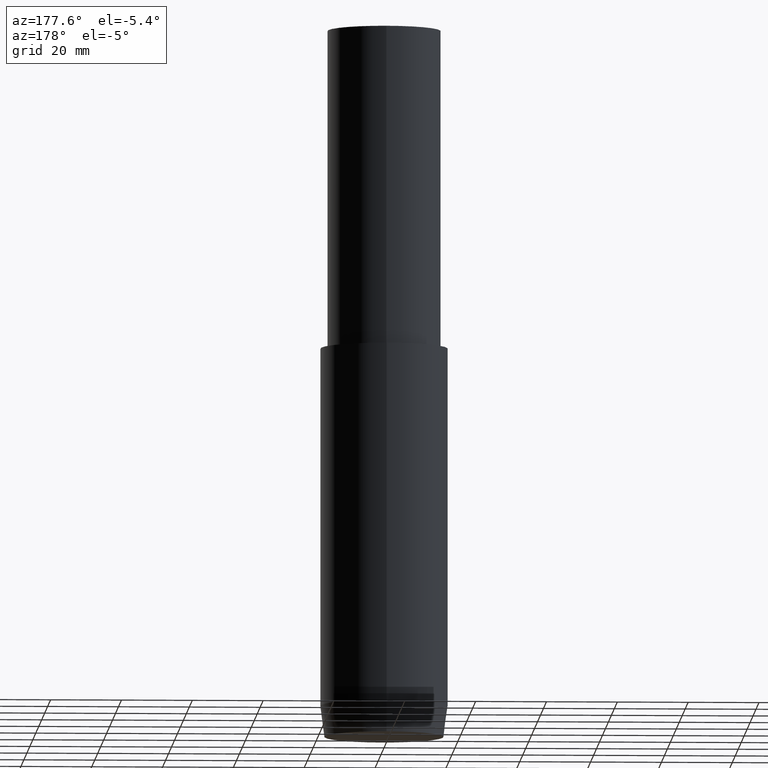
[diagram: clean part render]
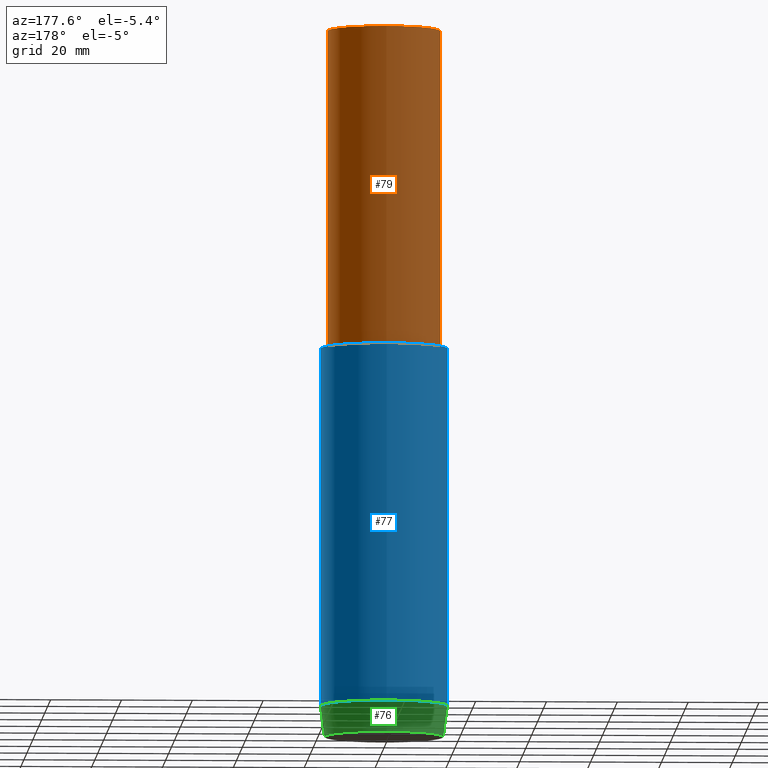
[diagram: same view with three faces highlighted in distinct colors, each labeled with its STEP entity id]
A machine part, auxiliary view with three faces highlighted in distinct colors.
Their STEP definitions:

[orange] entity #79 — the highlighted cylindrical surface (bore or boss wall) has radius 16 mm, axis along (0, -0, -1).
#79=ADVANCED_FACE('',(#93,#94),#95,.T.);
#93=FACE_BOUND('',#109,.T.);
#94=FACE_BOUND('',#110,.T.);
#95=CYLINDRICAL_SURFACE('',#111,16.0000000004298);
#109=EDGE_LOOP('',(#133));
#110=EDGE_LOOP('',(#134));
#111=AXIS2_PLACEMENT_3D('',#135,#136,#137);
#133=ORIENTED_EDGE('',*,*,#146,.F.);
#134=ORIENTED_EDGE('',*,*,#145,.T.);
#135=CARTESIAN_POINT('',(-9.49101269339205E-015,2.81005382113705E-015,155.000000000001));
#136=DIRECTION('',(6.12323399573677E-017,-1.81293794912064E-017,-1.0));
#137=DIRECTION('',(-3.71704840254734E-033,1.0,-1.81293794912064E-017));
#145=EDGE_CURVE('',#153,#153,#154,.T.);
#146=EDGE_CURVE('',#155,#155,#156,.T.);
#153=VERTEX_POINT('',#163);
#154=CIRCLE('',#164,16.0000000004299);
#155=VERTEX_POINT('',#165);
#156=CIRCLE('',#166,16.0000000004298);
#163=CARTESIAN_POINT('',(-6.73555739531056E-015,16.0000000004299,110.000000000002));
#164=AXIS2_PLACEMENT_3D('',#176,#177,#178);
#165=CARTESIAN_POINT('',(-1.22464679914735E-014,16.0000000004298,200.0));
#166=AXIS2_PLACEMENT_3D('',#179,#180,#181);
#176=CARTESIAN_POINT('',(-6.73555739531056E-015,1.99423174403276E-015,110.000000000002));
#177=DIRECTION('',(-6.12323399573676E-017,1.81293794912064E-017,1.0));
#178=DIRECTION('',(-3.71704840254734E-033,1.0,-1.81293794912064E-017));
#179=CARTESIAN_POINT('',(-1.22464679914735E-014,3.6258758982413E-015,200.0));
#180=DIRECTION('',(-6.12323399573677E-017,1.81293794912064E-017,1.0));
#181=DIRECTION('',(-3.71704840254734E-033,1.0,-1.81293794912064E-017));

[blue] entity #77 — the highlighted cylindrical surface (bore or boss wall) has radius 18 mm, axis along (0, -0, -1).
#77=ADVANCED_FACE('',(#87,#88),#89,.T.);
#87=FACE_BOUND('',#103,.T.);
#88=FACE_BOUND('',#104,.T.);
#89=CYLINDRICAL_SURFACE('',#105,17.9999999999992);
#103=EDGE_LOOP('',(#123));
#104=EDGE_LOOP('',(#124));
#105=AXIS2_PLACEMENT_3D('',#125,#126,#127);
#123=ORIENTED_EDGE('',*,*,#144,.F.);
#124=ORIENTED_EDGE('',*,*,#143,.T.);
#125=CARTESIAN_POINT('',(-3.6362539022594E-015,1.07660473152489E-015,59.384532826789));
#126=DIRECTION('',(6.12323399573677E-017,-1.81293794912064E-017,-1.0));
#127=DIRECTION('',(-3.71704840254734E-033,1.0,-1.81293794912064E-017));
#143=EDGE_CURVE('',#149,#149,#150,.T.);
#144=EDGE_CURVE('',#151,#151,#152,.T.);
#149=VERTEX_POINT('',#159);
#150=CIRCLE('',#160,17.9999999999992);
#151=VERTEX_POINT('',#161);
#152=CIRCLE('',#162,17.9999999999992);
#159=CARTESIAN_POINT('',(-5.3695040920828E-016,17.9999999999992,8.76906565357663));
#160=AXIS2_PLACEMENT_3D('',#170,#171,#172);
#161=CARTESIAN_POINT('',(-6.73555739531052E-015,17.9999999999992,110.000000000001));
#162=AXIS2_PLACEMENT_3D('',#173,#174,#175);
#170=CARTESIAN_POINT('',(-5.3695040920828E-016,1.58977719017026E-016,8.76906565357663));
#171=DIRECTION('',(-6.12323399573677E-017,1.81293794912064E-017,1.0));
#172=DIRECTION('',(-3.71704840254734E-033,1.0,-1.81293794912064E-017));
#173=CARTESIAN_POINT('',(-6.73555739531052E-015,1.99423174403271E-015,110.000000000001));
#174=DIRECTION('',(-6.12323399573677E-017,1.81293794912064E-017,1.0));
#175=DIRECTION('',(-3.71704840254734E-033,1.0,-1.81293794912064E-017));

[green] entity #76 — the highlighted conical surface has half-angle 7.5 deg.
#76=ADVANCED_FACE('',(#84,#85),#86,.T.);
#84=FACE_BOUND('',#100,.T.);
#85=FACE_BOUND('',#101,.T.);
#86=CONICAL_SURFACE('',#102,17.4227653025987,0.130899693899546);
#100=EDGE_LOOP('',(#118));
#101=EDGE_LOOP('',(#119));
#102=AXIS2_PLACEMENT_3D('',#120,#121,#122);
#118=ORIENTED_EDGE('',*,*,#143,.F.);
#119=ORIENTED_EDGE('',*,*,#142,.T.);
#120=CARTESIAN_POINT('',(-2.68475204604141E-016,7.94888595084878E-017,4.38453282678833));
#121=DIRECTION('',(-6.12323399573677E-017,1.81293794912064E-017,1.0));
#122=DIRECTION('',(-3.71704840254734E-033,1.0,-1.81293794912064E-017));
#142=EDGE_CURVE('',#147,#147,#148,.T.);
#143=EDGE_CURVE('',#149,#149,#150,.T.);
#147=VERTEX_POINT('',#157);
#148=CIRCLE('',#158,16.8455306051983);
#149=VERTEX_POINT('',#159);
#150=CIRCLE('',#160,17.9999999999992);
#157=CARTESIAN_POINT('',(0.0,16.8455306051983,0.0));
#158=AXIS2_PLACEMENT_3D('',#167,#168,#169);
#159=CARTESIAN_POINT('',(-5.3695040920828E-016,17.9999999999992,8.76906565357663));
#160=AXIS2_PLACEMENT_3D('',#170,#171,#172);
#167=CARTESIAN_POINT('',(0.0,0.0,0.0));
#168=DIRECTION('',(-6.12323399573677E-017,1.81293794912064E-017,1.0));
#169=DIRECTION('',(-3.71704840254734E-033,1.0,-1.81293794912064E-017));
#170=CARTESIAN_POINT('',(-5.3695040920828E-016,1.58977719017026E-016,8.76906565357663));
#171=DIRECTION('',(-6.12323399573677E-017,1.81293794912064E-017,1.0));
#172=DIRECTION('',(-3.71704840254734E-033,1.0,-1.81293794912064E-017));